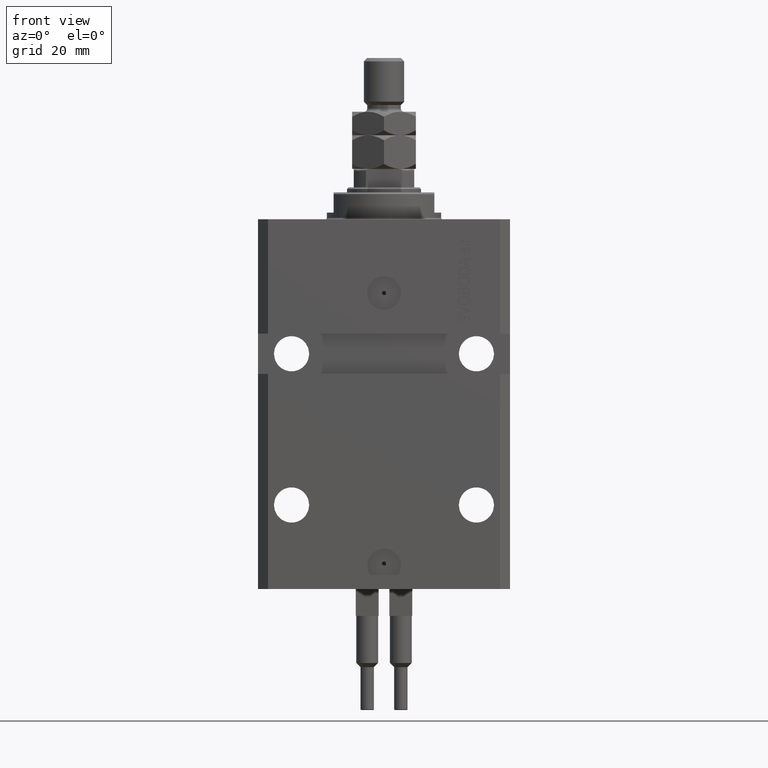
[diagram: clean part render]
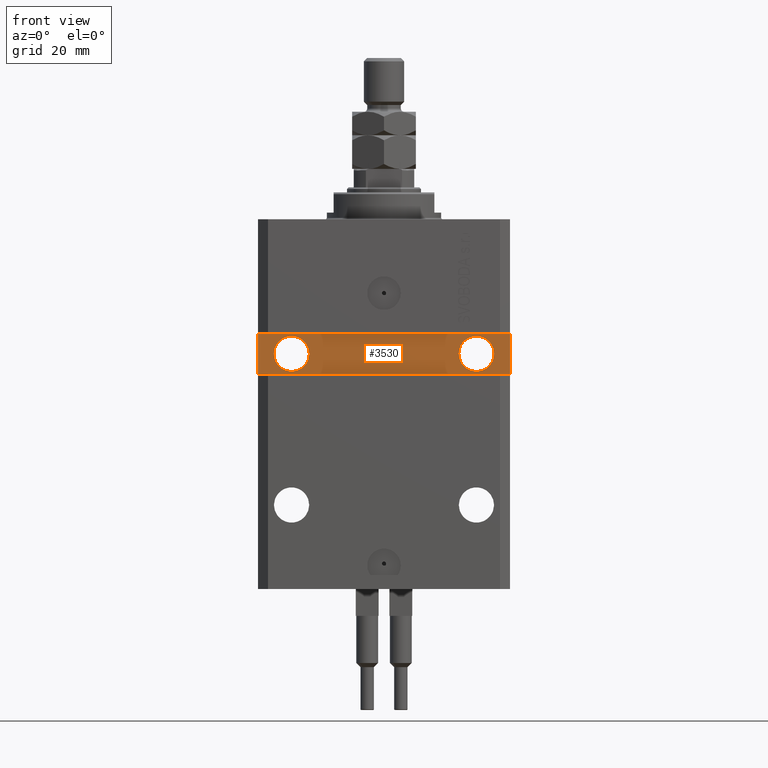
[diagram: same view with one face highlighted and labeled with its STEP entity id]
A machine part, front view. The second image highlights one B-rep face of the part: STEP entity #3530.
In plain terms, the highlighted planar face has unit normal (0, -1, 0).
Its self-contained STEP definition (entity closure, byte-faithful):
#246 = LINE ( 'NONE', #39462, #42707 ) ;
#497 = VERTEX_POINT ( 'NONE', #43138 ) ;
#1725 = CARTESIAN_POINT ( 'NONE',  ( -37.50000000000000000, -24.50000000000000000, -46.00000000000000000 ) ) ;
#2220 = LINE ( 'NONE', #1725, #19298 ) ;
#2345 = ORIENTED_EDGE ( 'NONE', *, *, #29192, .T. ) ;
#3530 = ADVANCED_FACE ( 'NONE', ( #13782, #36428, #6483 ), #47975, .T. ) ;
#3830 = AXIS2_PLACEMENT_3D ( 'NONE', #29098, #24823, #40149 ) ;
#4617 = CIRCLE ( 'NONE', #7825, 5.249999999999994671 ) ;
#5153 = EDGE_CURVE ( 'NONE', #44558, #46474, #12169, .T. ) ;
#5528 = ORIENTED_EDGE ( 'NONE', *, *, #23925, .T. ) ;
#5685 = EDGE_CURVE ( 'NONE', #31186, #9424, #43659, .T. ) ;
#6483 = FACE_OUTER_BOUND ( 'NONE', #38287, .T. ) ;
#7728 = CARTESIAN_POINT ( 'NONE',  ( 32.75000000000000000, -24.49999999999999289, -40.00000000000000000 ) ) ;
#7825 = AXIS2_PLACEMENT_3D ( 'NONE', #38750, #33761, #42283 ) ;
#8889 = DIRECTION ( 'NONE',  ( 0.000000000000000000, 0.000000000000000000, 1.000000000000000000 ) ) ;
#9424 = VERTEX_POINT ( 'NONE', #35082 ) ;
#12169 = LINE ( 'NONE', #46862, #32438 ) ;
#13292 = EDGE_CURVE ( 'NONE', #21317, #43557, #4617, .T. ) ;
#13529 = DIRECTION ( 'NONE',  ( 9.251858538542974046E-17, -1.000000000000000000, 0.000000000000000000 ) ) ;
#13782 = FACE_BOUND ( 'NONE', #49119, .T. ) ;
#13841 = ORIENTED_EDGE ( 'NONE', *, *, #5153, .T. ) ;
#16081 = DIRECTION ( 'NONE',  ( 0.000000000000000000, 0.000000000000000000, -1.000000000000000000 ) ) ;
#16162 = EDGE_LOOP ( 'NONE', ( #40568, #43216 ) ) ;
#17371 = ORIENTED_EDGE ( 'NONE', *, *, #13292, .F. ) ;
#17970 = EDGE_CURVE ( 'NONE', #43557, #21317, #25533, .T. ) ;
#19298 = VECTOR ( 'NONE', #32672, 1000.000000000000000 ) ;
#19560 = AXIS2_PLACEMENT_3D ( 'NONE', #44611, #24997, #40080 ) ;
#21227 = CARTESIAN_POINT ( 'NONE',  ( 37.49999999999999289, -24.49999999999999289, -33.99999999999997868 ) ) ;
#21317 = VERTEX_POINT ( 'NONE', #7728 ) ;
#21667 = DIRECTION ( 'NONE',  ( 1.101411730780568590E-16, -1.000000000000000000, 0.000000000000000000 ) ) ;
#21903 = CIRCLE ( 'NONE', #42775, 5.249999999999997335 ) ;
#23780 = AXIS2_PLACEMENT_3D ( 'NONE', #44464, #13529, #25844 ) ;
#23925 = EDGE_CURVE ( 'NONE', #497, #44558, #2220, .T. ) ;
#24438 = CARTESIAN_POINT ( 'NONE',  ( 37.49999999999999289, -24.49999999999999289, -46.00000000000000711 ) ) ;
#24823 = DIRECTION ( 'NONE',  ( 1.171720209325604191E-16, -1.000000000000000000, 0.000000000000000000 ) ) ;
#24997 = DIRECTION ( 'NONE',  ( 1.101411730780568590E-16, -1.000000000000000000, 0.000000000000000000 ) ) ;
#25533 = CIRCLE ( 'NONE', #3830, 5.249999999999994671 ) ;
#25844 = DIRECTION ( 'NONE',  ( 1.000000000000000000, 9.251858538542974046E-17, 0.000000000000000000 ) ) ;
#27848 = CARTESIAN_POINT ( 'NONE',  ( -37.50000000000000000, -24.50000000000000000, -34.00000000000000000 ) ) ;
#28854 = EDGE_CURVE ( 'NONE', #9424, #31186, #21903, .T. ) ;
#29098 = CARTESIAN_POINT ( 'NONE',  ( 27.50000000000000711, -24.49999999999999289, -40.00000000000000000 ) ) ;
#29192 = EDGE_CURVE ( 'NONE', #29570, #497, #246, .T. ) ;
#29570 = VERTEX_POINT ( 'NONE', #27848 ) ;
#31186 = VERTEX_POINT ( 'NONE', #42649 ) ;
#31810 = CARTESIAN_POINT ( 'NONE',  ( -27.49999999999999289, -24.50000000000000000, -40.00000000000000711 ) ) ;
#32438 = VECTOR ( 'NONE', #8889, 1000.000000000000000 ) ;
#32672 = DIRECTION ( 'NONE',  ( 1.000000000000000000, 9.251858538542972814E-17, -9.251858538542972814E-17 ) ) ;
#32685 = CARTESIAN_POINT ( 'NONE',  ( 22.25000000000001421, -24.49999999999999289, -40.00000000000000000 ) ) ;
#33761 = DIRECTION ( 'NONE',  ( 1.171720209325604191E-16, -1.000000000000000000, 0.000000000000000000 ) ) ;
#35082 = CARTESIAN_POINT ( 'NONE',  ( -22.24999999999999645, -24.50000000000000000, -40.00000000000000711 ) ) ;
#35586 = DIRECTION ( 'NONE',  ( 1.000000000000000000, 0.000000000000000000, 0.000000000000000000 ) ) ;
#36081 = DIRECTION ( 'NONE',  ( -1.000000000000000000, -9.251858538542972814E-17, -2.775557561562891844E-16 ) ) ;
#36428 = FACE_BOUND ( 'NONE', #16162, .T. ) ;
#37771 = CARTESIAN_POINT ( 'NONE',  ( 37.49999999999999289, -24.49999999999999289, -33.99999999999997868 ) ) ;
#38287 = EDGE_LOOP ( 'NONE', ( #5528, #13841, #40752, #2345 ) ) ;
#38750 = CARTESIAN_POINT ( 'NONE',  ( 27.50000000000000711, -24.49999999999999289, -40.00000000000000000 ) ) ;
#38761 = EDGE_CURVE ( 'NONE', #46474, #29570, #44113, .T. ) ;
#39462 = CARTESIAN_POINT ( 'NONE',  ( -37.50000000000000000, -24.50000000000000000, -34.00000000000000000 ) ) ;
#40080 = DIRECTION ( 'NONE',  ( 1.000000000000000000, 0.000000000000000000, 0.000000000000000000 ) ) ;
#40149 = DIRECTION ( 'NONE',  ( 1.000000000000000000, 0.000000000000000000, 0.000000000000000000 ) ) ;
#40568 = ORIENTED_EDGE ( 'NONE', *, *, #28854, .F. ) ;
#40752 = ORIENTED_EDGE ( 'NONE', *, *, #38761, .T. ) ;
#42283 = DIRECTION ( 'NONE',  ( 1.000000000000000000, 0.000000000000000000, 0.000000000000000000 ) ) ;
#42649 = CARTESIAN_POINT ( 'NONE',  ( -32.74999999999999289, -24.50000000000000000, -40.00000000000000711 ) ) ;
#42707 = VECTOR ( 'NONE', #16081, 1000.000000000000000 ) ;
#42775 = AXIS2_PLACEMENT_3D ( 'NONE', #31810, #21667, #35586 ) ;
#43138 = CARTESIAN_POINT ( 'NONE',  ( -37.50000000000000000, -24.50000000000000000, -46.00000000000000000 ) ) ;
#43216 = ORIENTED_EDGE ( 'NONE', *, *, #5685, .F. ) ;
#43557 = VERTEX_POINT ( 'NONE', #32685 ) ;
#43659 = CIRCLE ( 'NONE', #19560, 5.249999999999997335 ) ;
#44113 = LINE ( 'NONE', #21227, #48391 ) ;
#44464 = CARTESIAN_POINT ( 'NONE',  ( 2.191435984341281325E-15, -24.49999999999999645, 0.000000000000000000 ) ) ;
#44558 = VERTEX_POINT ( 'NONE', #24438 ) ;
#44611 = CARTESIAN_POINT ( 'NONE',  ( -27.49999999999999289, -24.50000000000000000, -40.00000000000000711 ) ) ;
#46474 = VERTEX_POINT ( 'NONE', #37771 ) ;
#46862 = CARTESIAN_POINT ( 'NONE',  ( 37.49999999999999289, -24.49999999999999289, -46.00000000000000711 ) ) ;
#47975 = PLANE ( 'NONE',  #23780 ) ;
#48391 = VECTOR ( 'NONE', #36081, 1000.000000000000000 ) ;
#49119 = EDGE_LOOP ( 'NONE', ( #17371, #49764 ) ) ;
#49764 = ORIENTED_EDGE ( 'NONE', *, *, #17970, .F. ) ;